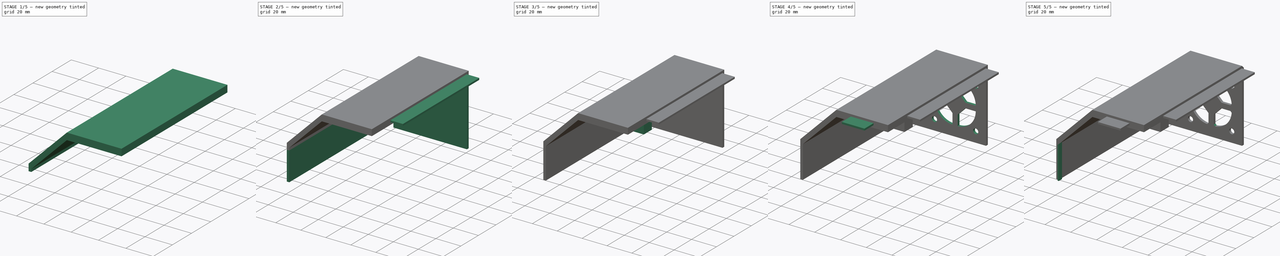
[diagram: build sequence overview — one tinted view per stage of 5, left to right]
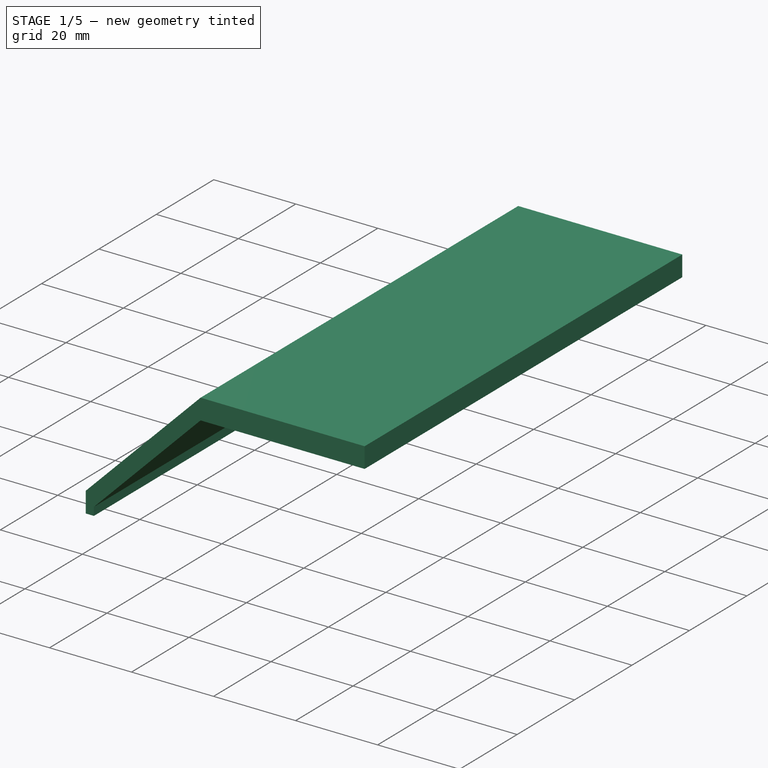
[diagram: stage 1 of 5 — iso view after this stage's code; geometry added in this stage tinted green]
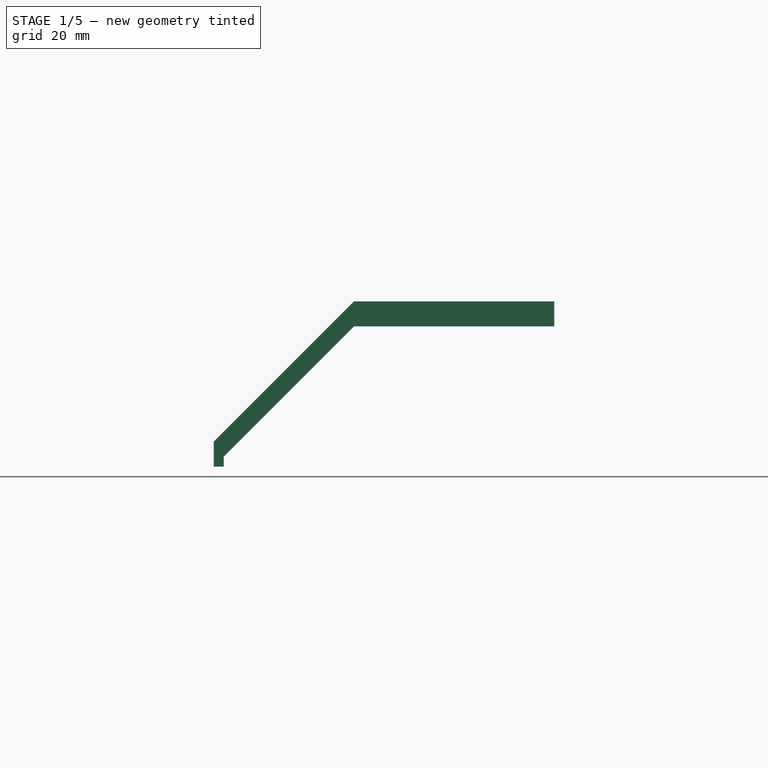
[diagram: stage 1 of 5 — front view after this stage's code; geometry added in this stage tinted green]
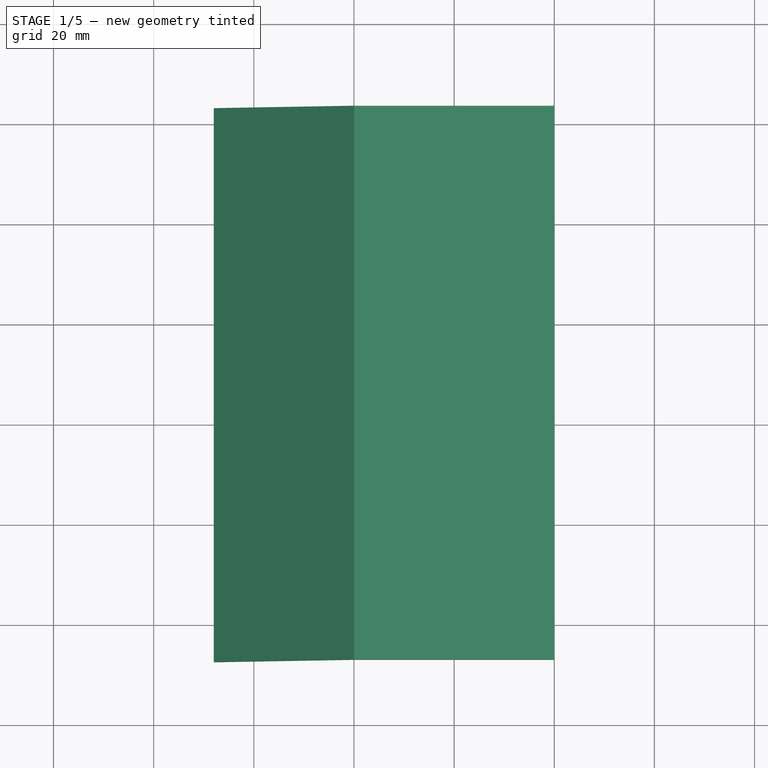
[diagram: stage 1 of 5 — top view after this stage's code; geometry added in this stage tinted green]
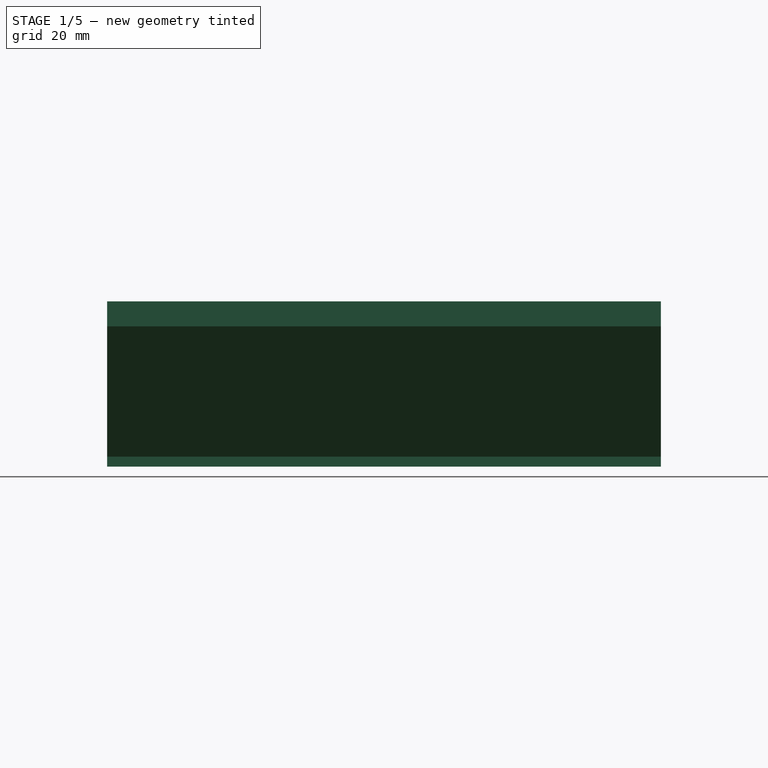
[diagram: stage 1 of 5 — right view after this stage's code; geometry added in this stage tinted green]
FCSTD DOCUMENT  (FreeCAD 2022.1112R26244 +5306 (Git))
Label: SecondPartProcessorTop
License: All rights reserved
LicenseURL: http://en.wikipedia.org/wiki/All_rights_reserved
objects: Sketcher::SketchObject×14, PartDesign::Pad×12, PartDesign::Chamfer×4, PartDesign::Pocket×3, PartDesign::CoordinateSystem×1, PartDesign::Body×1, App::Part×1
note: 87 computed .brp shape members not serialized (recipe doc carries the construction recipe); baked Part::Feature solids carry a one-line shape summary decoded from their .brp

FEATURE [PartDesign::CoordinateSystem] LCS_0
  AttacherType = Attacher::AttachEngine3D
  AttachmentSupport = -> [X_Axis001]
  MapMode = 2
  Support = -> [X_Axis001]
  TreeRank = 0
FEATURE [Sketcher::SketchObject] Sketch_1
  ArcFitTolerance = 0
  ExternalBSplineMaxDegree = 0
  ExternalBSplineTolerance = 0
  FullyConstrained = true
  InternalTolerance = 1e-06
  MakeInternals = false
  TreeRank = 0
  sketch-geometry (4):
    g0: LineSegment StartX=0 StartY=0 StartZ=0 EndX=-40 EndY=0 EndZ=0
    g1: LineSegment StartX=-40 StartY=0 StartZ=0 EndX=-40 EndY=93 EndZ=0
    g2: LineSegment StartX=-40 StartY=93 StartZ=0 EndX=0 EndY=93 EndZ=0
    g3: LineSegment StartX=0 StartY=93 StartZ=0 EndX=0 EndY=0 EndZ=0
  constraints (11):
    c: Coincident(g0,g1)
    c: Coincident(g1,g2)
    c: Coincident(g2,g3)
    c: Coincident(g3,g0)
    c: Horizontal(g0)
    c: Horizontal(g2)
    c: Vertical(g1)
    c: Vertical(g3)
    c: Coincident(g0,g-1)
    c: DistanceY(g3,g3) = 93
    c: DistanceX(g2,g2) = 40
FEATURE [PartDesign::Pad] Pad  label="MainSupport"
  AddSubType = 0
  AutoTaperInnerAngle = false
  CheckUpToFaceLimits = true
  ClaimChildren = false
  Direction = (0,0,1)
  Fit = 0
  FitJoin = 0
  InnerFit = 0
  InnerFitJoin = 0
  Length = 5
  Length2 = 100
  NewSolid = false
  Profile = -> Sketch_1
  Suppress = false
  TaperInnerAngle = 0
  TaperInnerAngleRev = 0
  TreeRank = 0
  Type = 0
  _ProfileBasedVersion = 0
FEATURE [Sketcher::SketchObject] Sketch
  ArcFitTolerance = 0
  AttachmentSupport = -> [XY_Plane001]
  ExternalBSplineMaxDegree = 0
  ExternalBSplineTolerance = 0
  ExternalGeometry = -> [Pad]
  FullyConstrained = true
  InternalTolerance = 1e-06
  MakeInternals = false
  MapMode = 5
  Support = -> [XY_Plane001]
  TreeRank = 1
  sketch-geometry (4):
    g0: LineSegment StartX=0 StartY=0 StartZ=0 EndX=-40 EndY=0 EndZ=0
    g1: LineSegment StartX=-40 StartY=0 StartZ=0 EndX=-40 EndY=-7.4 EndZ=0
    g2: LineSegment StartX=0 StartY=-7.4 StartZ=0 EndX=0 EndY=0 EndZ=0
    g3: LineSegment StartX=-40 StartY=-7.4 StartZ=0 EndX=0 EndY=-7.4 EndZ=0
  constraints (11):
    c: Coincident(g2,g0)
    c: Vertical(g1)
    c: Vertical(g2)
    c: Coincident(g0,g-1)
    c: DistanceY(g2,g2) = 7.4
    c: Horizontal(g0)
    c: Coincident(g1,g0)
    c: Coincident(g3,g1)
    c: Horizontal(g3)
    c: DistanceX(g0,g0) = 40
    c: Coincident(g3,g2)
FEATURE [PartDesign::Pad] Pad011  label="ExtraSideSize"
  AddSubType = 0
  AlongSketchNormal = false
  AutoTaperInnerAngle = false
  BaseFeature = -> Pad
  CheckUpToFaceLimits = true
  ClaimChildren = false
  Direction = (0,1,0)
  Fit = 0
  FitJoin = 0
  InnerFit = 0
  InnerFitJoin = 0
  Length = 10.2
  Length2 = 100
  Linearize = true
  NewSolid = false
  Profile = -> Pad [Face3]
  Suppress = false
  TaperInnerAngle = 0
  TaperInnerAngleRev = 0
  TreeRank = 27
  Type = 0
  _ProfileBasedVersion = 1
FEATURE [PartDesign::Pad] Pad001  label="ExtraPeripheralsSize"
  AddSubType = 0
  AlongSketchNormal = false
  AutoTaperInnerAngle = false
  BaseFeature = -> Pad011
  CheckUpToFaceLimits = true
  ClaimChildren = false
  Direction = (0,0,1)
  Fit = 0
  FitJoin = 0
  InnerFit = 0
  InnerFitJoin = 0
  Length = 5
  Length2 = 100
  Linearize = true
  NewSolid = false
  Profile = -> Sketch
  Suppress = false
  TaperInnerAngle = 0
  TaperInnerAngleRev = 0
  TreeRank = 2
  Type = 0
  _ProfileBasedVersion = 1
FEATURE [Sketcher::SketchObject] Sketch001
  ArcFitTolerance = 0
  AttachmentSupport = -> [Pad001]
  ExternalBSplineMaxDegree = 0
  ExternalBSplineTolerance = 0
  ExternalGeometry = -> [Pad001]
  FullyConstrained = true
  InternalTolerance = 1e-06
  MakeInternals = false
  MapMode = 5
  Placement = pos=(0,-7.4,0) rot=(1,0,0;1.5708rad)
  Support = -> [Pad001]
  TreeRank = 3
  sketch-geometry (7):
    g0: LineSegment StartX=-40 StartY=5 StartZ=0 EndX=-68 EndY=-23 EndZ=0
    g1: LineSegment StartX=-68 StartY=-23 StartZ=0 EndX=-68 EndY=-28 EndZ=0
    g2: LineSegment StartX=-40 StartY=5 StartZ=0 EndX=-40 EndY=0 EndZ=0
    g3: LineSegment StartX=-68 StartY=-28 StartZ=0 EndX=-66 EndY=-28 EndZ=0
    g4: LineSegment StartX=-66 StartY=-28 StartZ=0 EndX=-66 EndY=-26 EndZ=0
    g5: LineSegment StartX=-40 StartY=0 StartZ=0 EndX=-66 EndY=-26 EndZ=0
    g6: LineSegment [constr] StartX=-66 StartY=-26 StartZ=0 EndX=-68 EndY=-28 EndZ=0
  constraints (19):
    c: Coincident(g0,g-3)
    c: Coincident(g5,g-3)
    c: Coincident(g1,g0)
    c: Vertical(g1)
    c: DistanceX(g0,g0) = 28
    c: Angle(g0,g-3) = 0.785398
    c: Coincident(g2,g0)
    c: Coincident(g2,g5)
    c: Equal(g2,g1)
    c: DistanceY(g1,g5) = 28
    c: Horizontal(g3)
    c: Coincident(g4,g3)
    c: Vertical(g4)
    c: Coincident(g5,g4)
    c: Coincident(g3,g1)
    c: Coincident(g6,g4)
    c: Coincident(g6,g1)
    c: Parallel(g6,g5)
    c: DistanceX(g3,g3) = 2
FEATURE [PartDesign::Pad] Pad002  label="Slope"
  AddSubType = 0
  AlongSketchNormal = false
  AutoTaperInnerAngle = false
  BaseFeature = -> Pad001
  CheckUpToFaceLimits = true
  ClaimChildren = false
  Direction = (0,-1,2e-16)
  Fit = 0
  FitJoin = 0
  InnerFit = 0
  InnerFitJoin = 0
  Length = 10
  Length2 = 100
  Linearize = true
  NewSolid = false
  Profile = -> Sketch001
  Reversed = true
  Suppress = false
  TaperInnerAngle = 0
  TaperInnerAngleRev = 0
  TreeRank = 4
  Type = 3
  UpToFace = -> Pad001 [Face8]
  _ProfileBasedVersion = 1
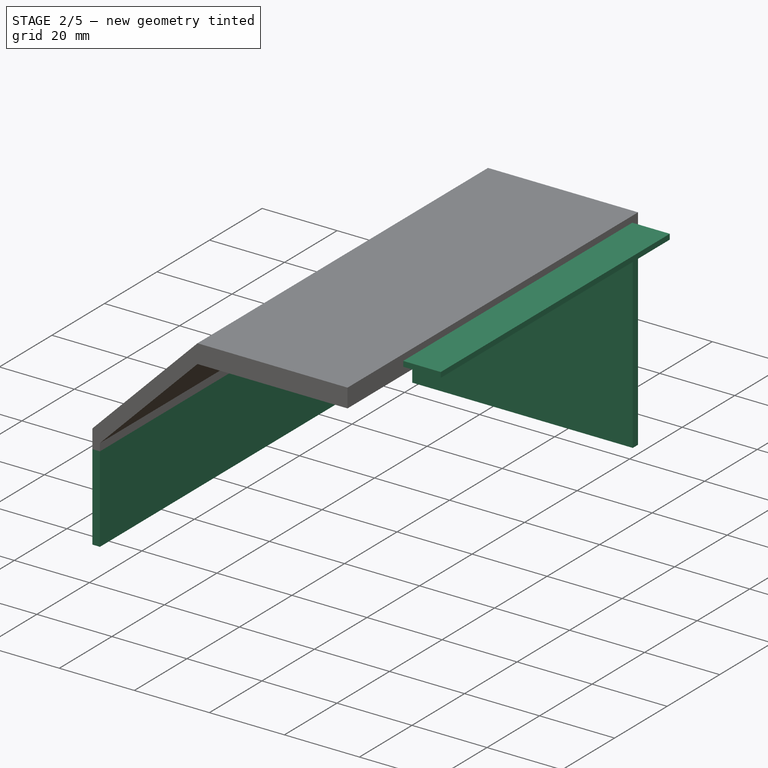
[diagram: stage 2 of 5 — iso view after this stage's code; geometry added in this stage tinted green]
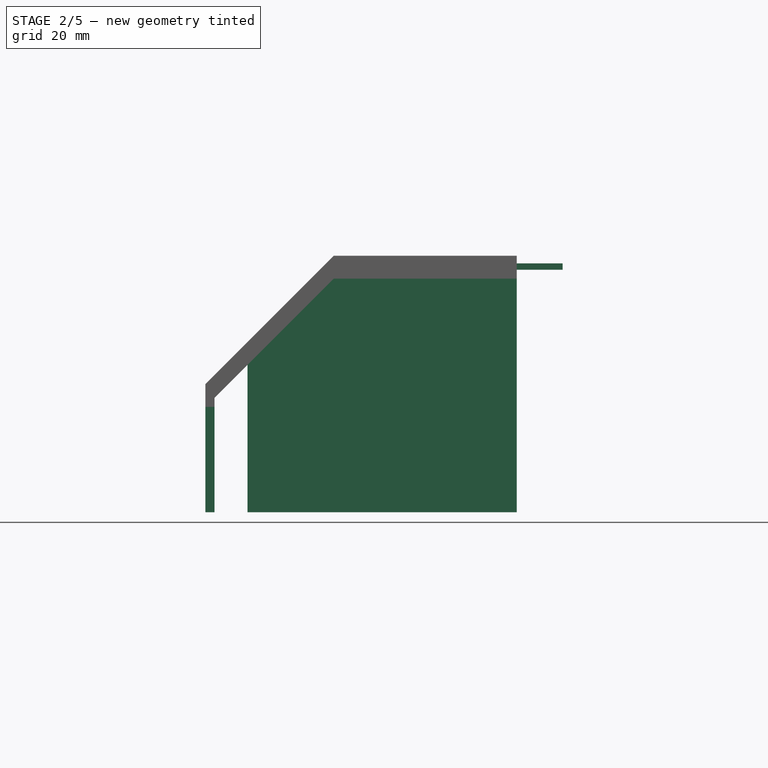
[diagram: stage 2 of 5 — front view after this stage's code; geometry added in this stage tinted green]
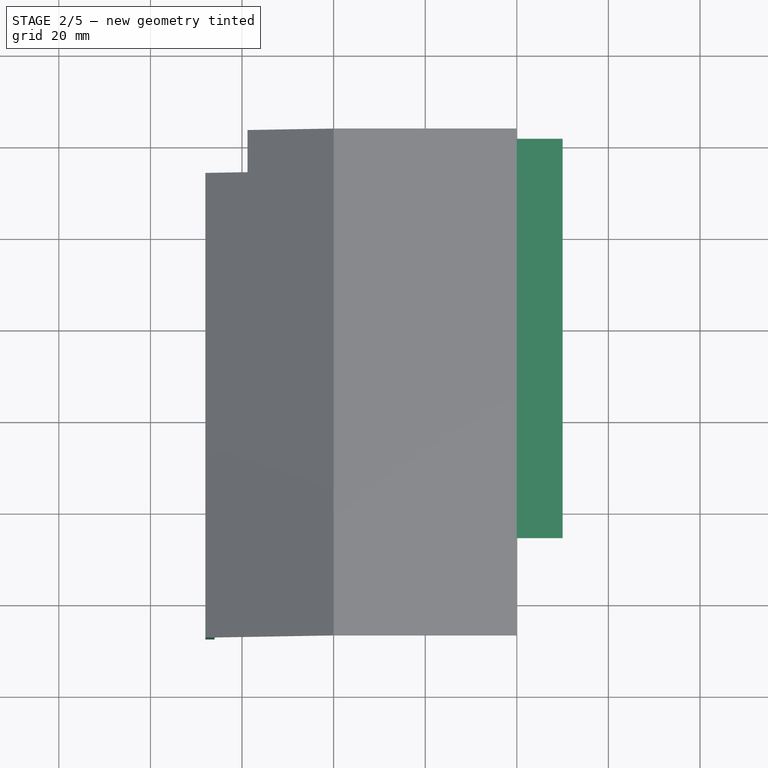
[diagram: stage 2 of 5 — top view after this stage's code; geometry added in this stage tinted green]
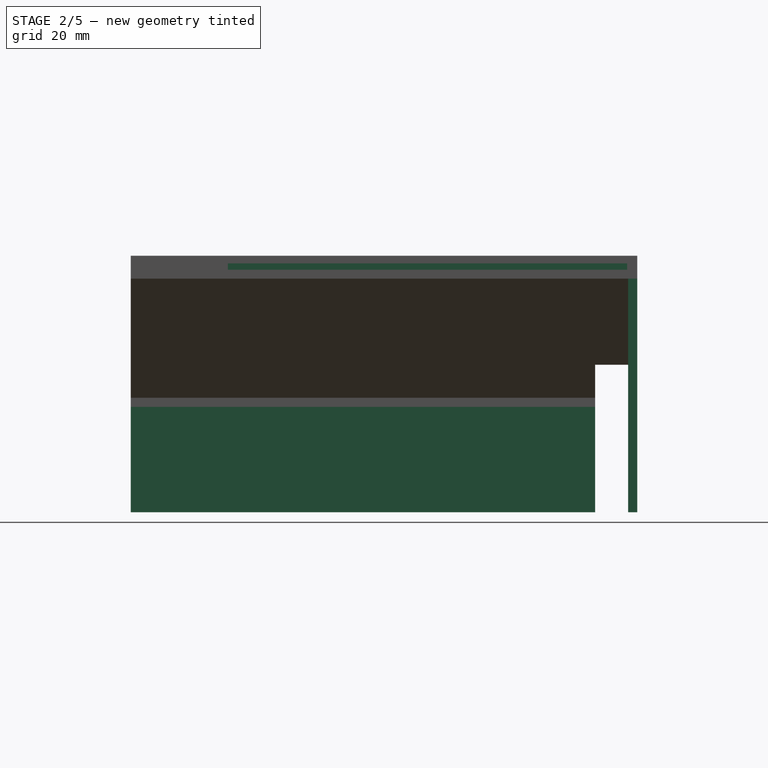
[diagram: stage 2 of 5 — right view after this stage's code; geometry added in this stage tinted green]
FEATURE [Sketcher::SketchObject] Sketch005
  ArcFitTolerance = 0
  AttachmentSupport = -> [Pad002]
  ExternalBSplineMaxDegree = 0
  ExternalBSplineTolerance = 0
  ExternalGeometry = -> [Pad002]
  FullyConstrained = true
  InternalTolerance = 1e-06
  MakeInternals = false
  MapMode = 5
  Placement = pos=(0,0,5) rot=(0,0,1;0rad)
  Support = -> [Pad002]
  TreeRank = 11
  sketch-geometry (4):
    g0: LineSegment StartX=-68 StartY=103.2 StartZ=0 EndX=-58.8 EndY=103.2 EndZ=0
    g1: LineSegment StartX=-58.8 StartY=103.2 StartZ=0 EndX=-58.8 EndY=94 EndZ=0
    g2: LineSegment StartX=-58.8 StartY=94 StartZ=0 EndX=-68 EndY=94 EndZ=0
    g3: LineSegment StartX=-68 StartY=94 StartZ=0 EndX=-68 EndY=103.2 EndZ=0
  constraints (11):
    c: Coincident(g0,g1)
    c: Coincident(g1,g2)
    c: Coincident(g2,g3)
    c: Coincident(g3,g0)
    c: Horizontal(g0)
    c: Horizontal(g2)
    c: Vertical(g1)
    c: Vertical(g3)
    c: Coincident(g0,g-3)
    c: Equal(g1,g2)
    c: DistanceY(g1,g1) = 9.2
FEATURE [PartDesign::Pocket] Pocket  label="ColumnPartHole"
  AddSubType = 1
  AutoTaperInnerAngle = false
  BaseFeature = -> Pad002
  CheckUpToFaceLimits = true
  ClaimChildren = false
  Fit = 0
  FitJoin = 0
  InnerFit = 0
  InnerFitJoin = 0
  Length = 5
  Length2 = 100
  Linearize = true
  NewSolid = false
  Profile = -> Sketch005
  Suppress = false
  TaperInnerAngle = 0
  TaperInnerAngleRev = 0
  TreeRank = 12
  Type = 1
  _ProfileBasedVersion = 1
  _Version = 1
FEATURE [Sketcher::SketchObject] Sketch006
  ArcFitTolerance = 0
  ExternalBSplineMaxDegree = 0
  ExternalBSplineTolerance = 0
  ExternalGeometry = -> [Pocket]
  FullyConstrained = true
  InternalTolerance = 1e-06
  MakeInternals = false
  MapMode = 5
  Placement = pos=(0,-6.2e-15,-28) rot=(1,0,0;3.14159rad)
  TreeRank = 13
  sketch-geometry (4):
    g0: LineSegment StartX=-68 StartY=-94 StartZ=0 EndX=-66 EndY=-94 EndZ=0
    g1: LineSegment StartX=-66 StartY=-94 StartZ=0 EndX=-66 EndY=7.4 EndZ=0
    g2: LineSegment StartX=-66 StartY=7.4 StartZ=0 EndX=-68 EndY=7.4 EndZ=0
    g3: LineSegment StartX=-68 StartY=7.4 StartZ=0 EndX=-68 EndY=-94 EndZ=0
  constraints (10):
    c: Coincident(g0,g1)
    c: Coincident(g1,g2)
    c: Coincident(g2,g3)
    c: Coincident(g3,g0)
    c: Horizontal(g0)
    c: Horizontal(g2)
    c: Vertical(g1)
    c: Vertical(g3)
    c: Coincident(g0,g-4)
    c: Coincident(g1,g-3)
FEATURE [PartDesign::Pad] Pad006  label="SlopeSidePanel"
  AddSubType = 0
  AlongSketchNormal = false
  AutoTaperInnerAngle = false
  BaseFeature = -> Pocket
  CheckUpToFaceLimits = true
  ClaimChildren = false
  Direction = (0,-2e-16,-1)
  Fit = 0
  FitJoin = 0
  InnerFit = 0
  InnerFitJoin = 0
  Length = 23
  Length2 = 100
  Linearize = true
  NewSolid = false
  Profile = -> Sketch006
  Suppress = false
  TaperInnerAngle = 0
  TaperInnerAngleRev = 0
  TreeRank = 14
  Type = 0
  _ProfileBasedVersion = 1
FEATURE [Sketcher::SketchObject] Sketch011
  ArcFitTolerance = 0
  ExternalBSplineMaxDegree = 0
  ExternalBSplineTolerance = 0
  ExternalGeometry = -> [Pad006]
  FullyConstrained = true
  InternalTolerance = 1e-06
  MakeInternals = false
  MapMode = 5
  Placement = pos=(0,0,0) rot=(0.57735,0.57735,0.57735;2.0944rad)
  TreeRank = 23
  sketch-geometry (4):
    g0: LineSegment StartX=13.8 StartY=3.34 StartZ=0 EndX=101 EndY=3.34 EndZ=0
    g1: LineSegment StartX=101 StartY=3.34 StartZ=0 EndX=101 EndY=1.94 EndZ=0
    g2: LineSegment StartX=101 StartY=1.94 StartZ=0 EndX=13.8 EndY=1.94 EndZ=0
    g3: LineSegment StartX=13.8 StartY=1.94 StartZ=0 EndX=13.8 EndY=3.34 EndZ=0
  constraints (12):
    c: Coincident(g0,g1)
    c: Coincident(g1,g2)
    c: Coincident(g2,g3)
    c: Coincident(g3,g0)
    c: Horizontal(g0)
    c: Horizontal(g2)
    c: Vertical(g1)
    c: Vertical(g3)
    c: DistanceY(g-3,g2) = 1.94
    c: DistanceX(g-3,g0) = 21.2
    c: DistanceY(g3,g3) = 1.4
    c: DistanceX(g0,g-4) = 2.2
FEATURE [PartDesign::Pad] Pad010  label="Puzzle1"
  AddSubType = 0
  AlongSketchNormal = false
  AutoTaperInnerAngle = false
  BaseFeature = -> Pad006
  CheckUpToFaceLimits = true
  ClaimChildren = false
  Direction = (1,0,0)
  Fit = 0
  FitJoin = 0
  InnerFit = 0
  InnerFitJoin = 0
  Length = 10
  Length2 = 100
  Linearize = true
  NewSolid = false
  Profile = -> Sketch011
  Suppress = false
  TaperInnerAngle = 0
  TaperInnerAngleRev = 0
  TreeRank = 24
  Type = 0
  _ProfileBasedVersion = 1
FEATURE [Sketcher::SketchObject] Sketch013
  ArcFitTolerance = 0
  AttachmentSupport = -> [Pad006]
  ExternalBSplineMaxDegree = 0
  ExternalBSplineTolerance = 0
  ExternalGeometry = -> [Pad006]
  FullyConstrained = true
  InternalTolerance = 1e-06
  MakeInternals = false
  MapMode = 5
  Placement = pos=(0,103.2,0) rot=(0,0.707107,0.707107;3.14159rad)
  Support = -> [Pad006]
  TreeRank = 28
  sketch-geometry (6):
    g0: LineSegment StartX=0 StartY=0 StartZ=0 EndX=40 EndY=0 EndZ=0
    g1: LineSegment StartX=40 StartY=0 StartZ=0 EndX=58.8 EndY=-18.8 EndZ=0
    g2: LineSegment StartX=58.8 StartY=-51 StartZ=0 EndX=0 EndY=-51 EndZ=0
    g3: LineSegment StartX=0 StartY=-51 StartZ=0 EndX=0 EndY=0 EndZ=0
    g4: LineSegment StartX=58.8 StartY=-18.8 StartZ=0 EndX=58.8 EndY=-51 EndZ=0
    g5: LineSegment [constr] StartX=66 StartY=-51 StartZ=0 EndX=58.8 EndY=-51 EndZ=0
  constraints (14):
    c: Coincident(g0,g-1)
    c: Coincident(g0,g-3)
    c: Coincident(g1,g0)
    c: Horizontal(g2)
    c: Coincident(g3,g2)
    c: Coincident(g3,g0)
    c: Vertical(g3)
    c: Coincident(g1,g-5)
    c: Coincident(g4,g1)
    c: Coincident(g4,g2)
    c: Vertical(g4)
    c: Coincident(g5,g-4)
    c: Coincident(g5,g2)
    c: Horizontal(g5)
FEATURE [PartDesign::Pad] Pad012  label="endPanel"
  AddSubType = 0
  AlongSketchNormal = false
  AutoTaperInnerAngle = false
  BaseFeature = -> Pad010
  CheckUpToFaceLimits = true
  ClaimChildren = false
  Direction = (0,1,-2e-16)
  Fit = 0
  FitJoin = 0
  InnerFit = 0
  InnerFitJoin = 0
  Length = 2
  Length2 = 100
  Linearize = true
  NewSolid = false
  Profile = -> Sketch013
  Reversed = true
  Suppress = false
  TaperInnerAngle = 0
  TaperInnerAngleRev = 0
  TreeRank = 29
  Type = 0
  _ProfileBasedVersion = 1
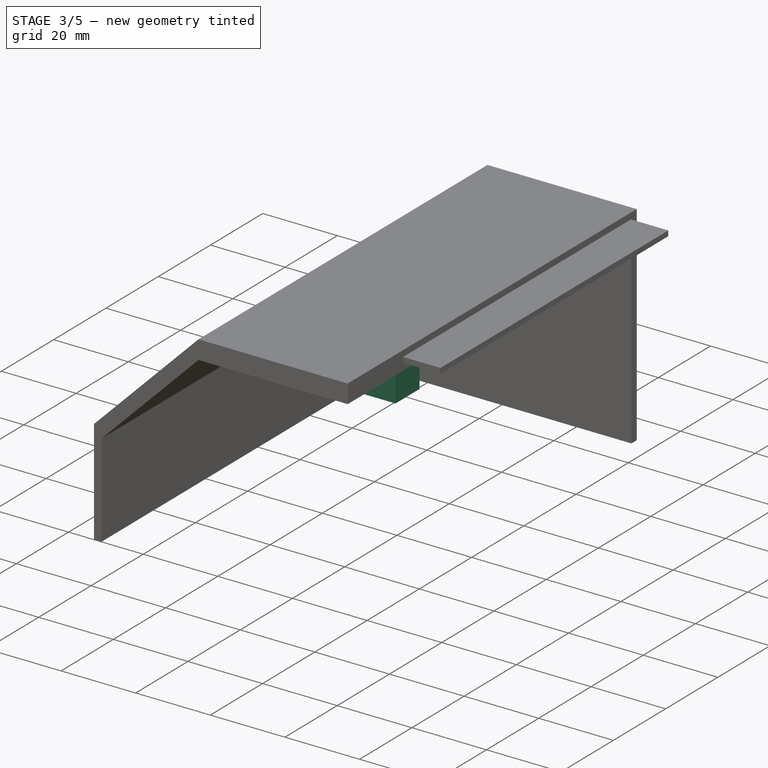
[diagram: stage 3 of 5 — iso view after this stage's code; geometry added in this stage tinted green]
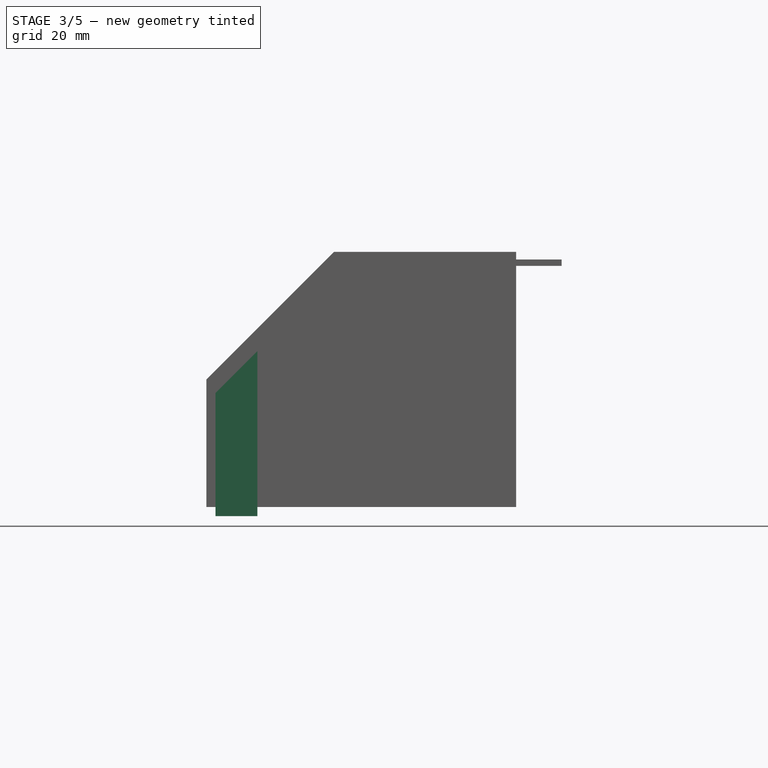
[diagram: stage 3 of 5 — front view after this stage's code; geometry added in this stage tinted green]
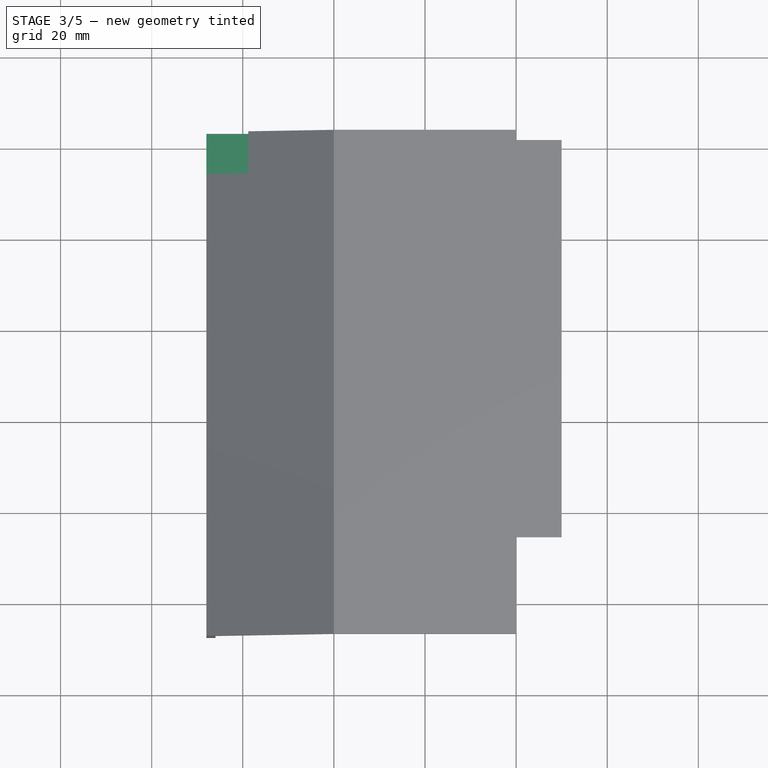
[diagram: stage 3 of 5 — top view after this stage's code; geometry added in this stage tinted green]
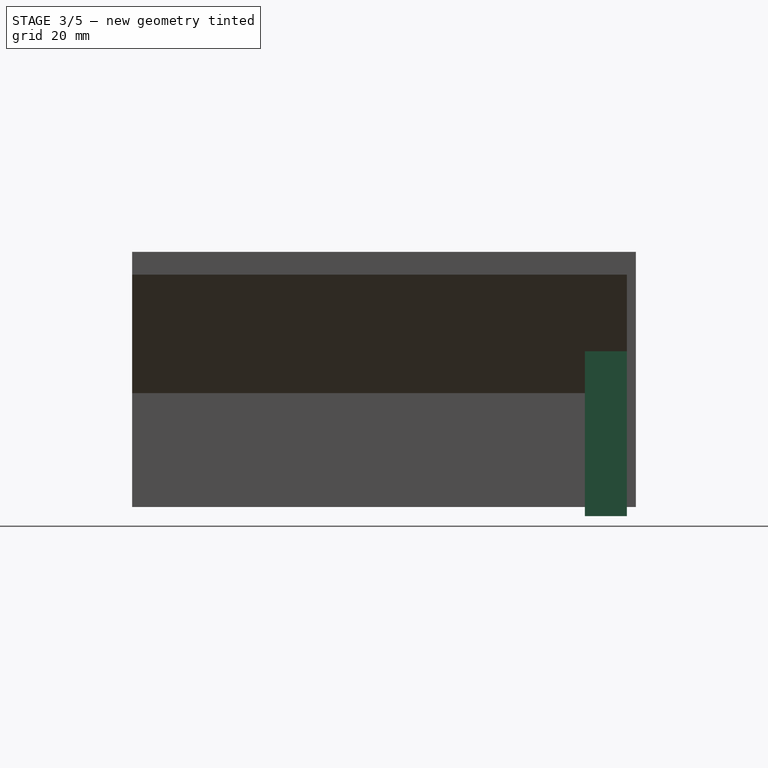
[diagram: stage 3 of 5 — right view after this stage's code; geometry added in this stage tinted green]
FEATURE [Sketcher::SketchObject] Sketch014
  ArcFitTolerance = 0
  AttachmentSupport = -> [Pad012]
  ExternalBSplineMaxDegree = 0
  ExternalBSplineTolerance = 0
  ExternalGeometry = -> [Pad012]
  FullyConstrained = true
  InternalTolerance = 1e-06
  MakeInternals = false
  MapMode = 5
  Placement = pos=(3e-15,101.2,-2.93e-14) rot=(1,0,0;1.5708rad)
  Support = -> [Pad012]
  TreeRank = 30
  sketch-geometry (7):
    g0: LineSegment StartX=-58.8 StartY=-51 StartZ=0 EndX=-58.8 EndY=-18.8 EndZ=0
    g1: LineSegment StartX=-58.8 StartY=-18.8 StartZ=0 EndX=-56.8 EndY=-16.8 EndZ=0
    g2: LineSegment StartX=-56.8 StartY=-16.8 StartZ=0 EndX=-56.8 EndY=-51 EndZ=0
    g3: LineSegment [constr] StartX=-56.8 StartY=-51 StartZ=0 EndX=-58.8 EndY=-51 EndZ=0
    g4: LineSegment StartX=-58.8 StartY=-51 StartZ=0 EndX=-58.8 EndY=-53 EndZ=0
    g5: LineSegment StartX=-58.8 StartY=-53 StartZ=0 EndX=-56.8 EndY=-53 EndZ=0
    g6: LineSegment StartX=-56.8 StartY=-53 StartZ=0 EndX=-56.8 EndY=-51 EndZ=0
  constraints (18):
    c: Coincident(g0,g-3)
    c: Coincident(g0,g-3)
    c: Coincident(g1,g0)
    c: PointOnObject(g1,g-4)
    c: Coincident(g2,g1)
    c: Vertical(g2)
    c: Coincident(g3,g2)
    c: Coincident(g3,g0)
    c: Horizontal(g3)
    c: DistanceX(g3,g3) = 2
    c: Coincident(g4,g0)
    c: Vertical(g4)
    c: Coincident(g5,g4)
    c: Horizontal(g5)
    c: Coincident(g6,g5)
    c: Coincident(g6,g2)
    c: Vertical(g6)
    c: DistanceY(g6,g6) = 2
FEATURE [PartDesign::Pad] Pad013  label="ColumnPanel1"
  AddSubType = 0
  AlongSketchNormal = false
  AutoTaperInnerAngle = false
  BaseFeature = -> Pad012
  CheckUpToFaceLimits = true
  ClaimChildren = false
  Direction = (0,-1,2e-16)
  Fit = 0
  FitJoin = 0
  InnerFit = 0
  InnerFitJoin = 0
  Length = 7.2
  Length2 = 100
  Linearize = true
  NewSolid = false
  Profile = -> Sketch014
  Suppress = false
  TaperInnerAngle = 0
  TaperInnerAngleRev = 0
  TreeRank = 31
  Type = 0
  _ProfileBasedVersion = 1
FEATURE [Sketcher::SketchObject] Sketch015
  ArcFitTolerance = 0
  AttachmentSupport = -> [Pad013]
  ExternalBSplineMaxDegree = 0
  ExternalBSplineTolerance = 0
  ExternalGeometry = -> [Pad013]
  FullyConstrained = true
  InternalTolerance = 1e-06
  MakeInternals = false
  MapMode = 5
  Placement = pos=(1.88e-14,94,-3.95e-14) rot=(1,0,0;1.5708rad)
  Support = -> [Pad013]
  TreeRank = 32
  sketch-geometry (4):
    g0: LineSegment StartX=-56.8 StartY=-53 StartZ=0 EndX=-66 EndY=-53 EndZ=0
    g1: LineSegment StartX=-66 StartY=-53 StartZ=0 EndX=-66 EndY=-26 EndZ=0
    g2: LineSegment StartX=-56.8 StartY=-53 StartZ=0 EndX=-56.8 EndY=-16.8 EndZ=0
    g3: LineSegment StartX=-56.8 StartY=-16.8 StartZ=0 EndX=-66 EndY=-26 EndZ=0
  constraints (10):
    c: Horizontal(g0)
    c: Coincident(g1,g0)
    c: Coincident(g1,g-4)
    c: Vertical(g1)
    c: PointOnObject(g2,g-4)
    c: Vertical(g2)
    c: Coincident(g3,g2)
    c: Coincident(g3,g1)
    c: Coincident(g0,g-3)
    c: Coincident(g2,g0)
FEATURE [PartDesign::Pad] Pad014  label="ColumnPanel2"
  AddSubType = 0
  AlongSketchNormal = false
  AutoTaperInnerAngle = false
  BaseFeature = -> Pad013
  CheckUpToFaceLimits = true
  ClaimChildren = false
  Direction = (-2e-16,-1,4e-16)
  Fit = 0
  FitJoin = 0
  InnerFit = 0
  InnerFitJoin = 0
  Length = 2
  Length2 = 100
  Linearize = true
  NewSolid = false
  Profile = -> Sketch015
  Suppress = false
  TaperInnerAngle = 0
  TaperInnerAngleRev = 0
  TreeRank = 33
  Type = 0
  _ProfileBasedVersion = 1
FEATURE [Sketcher::SketchObject] Sketch016
  ArcFitTolerance = 0
  AttachmentSupport = -> [Pad014]
  ExternalBSplineMaxDegree = 0
  ExternalBSplineTolerance = 0
  ExternalGeometry = -> [Pad014]
  FullyConstrained = true
  InternalTolerance = 1e-06
  MakeInternals = false
  MapMode = 5
  Placement = pos=(-58.8,1.8e-15,0) rot=(-0.57735,0.57735,0.57735;4.18879rad)
  Support = -> [Pad014]
  TreeRank = 34
  sketch-geometry (4):
    g0: LineSegment StartX=-103.2 StartY=-51 StartZ=0 EndX=-94 EndY=-51 EndZ=0
    g1: LineSegment StartX=-94 StartY=-51 StartZ=0 EndX=-94 EndY=-46 EndZ=0
    g2: LineSegment StartX=-94 StartY=-46 StartZ=0 EndX=-103.2 EndY=-46 EndZ=0
    g3: LineSegment StartX=-103.2 StartY=-46 StartZ=0 EndX=-103.2 EndY=-51 EndZ=0
  constraints (11):
    c: Coincident(g0,g1)
    c: Coincident(g1,g2)
    c: Coincident(g2,g3)
    c: Coincident(g3,g0)
    c: Horizontal(g0)
    c: Horizontal(g2)
    c: Vertical(g1)
    c: Vertical(g3)
    c: Coincident(g0,g-3)
    c: PointOnObject(g1,g-4)
    c: DistanceY(g3,g3) = 5
FEATURE [PartDesign::Pad] Pad015  label="HoleSupport"
  AddSubType = 0
  AlongSketchNormal = false
  AutoTaperInnerAngle = false
  BaseFeature = -> Pad014
  CheckUpToFaceLimits = true
  ClaimChildren = false
  Direction = (-1,0,0)
  Fit = 0
  FitJoin = 0
  InnerFit = 0
  InnerFitJoin = 0
  Length = 10
  Length2 = 100
  Linearize = true
  NewSolid = false
  Profile = -> Sketch016
  Suppress = false
  TaperInnerAngle = 0
  TaperInnerAngleRev = 0
  TreeRank = 35
  Type = 3
  UpToFace = -> Pad014 [Face37]
  _ProfileBasedVersion = 1
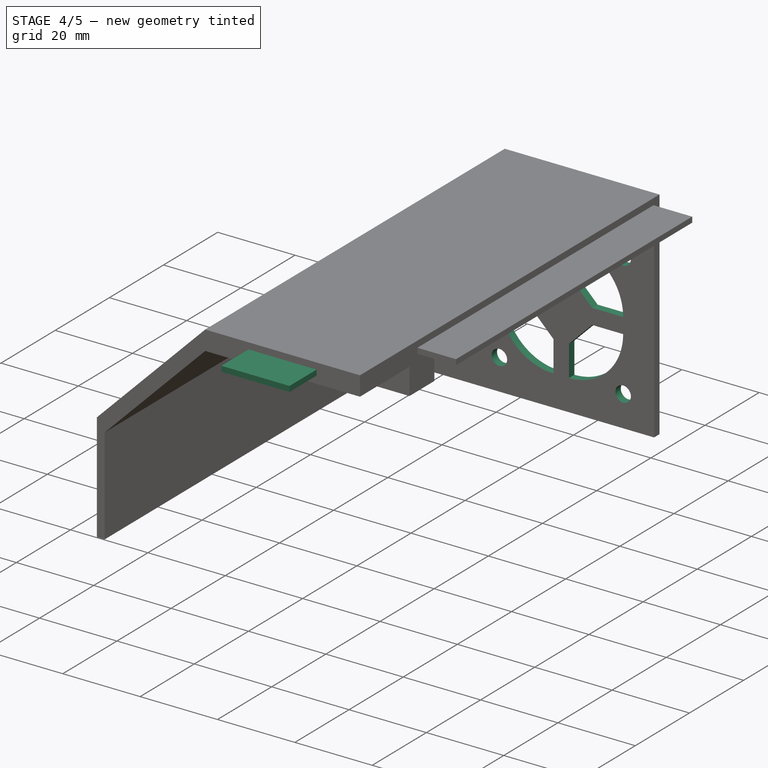
[diagram: stage 4 of 5 — iso view after this stage's code; geometry added in this stage tinted green]
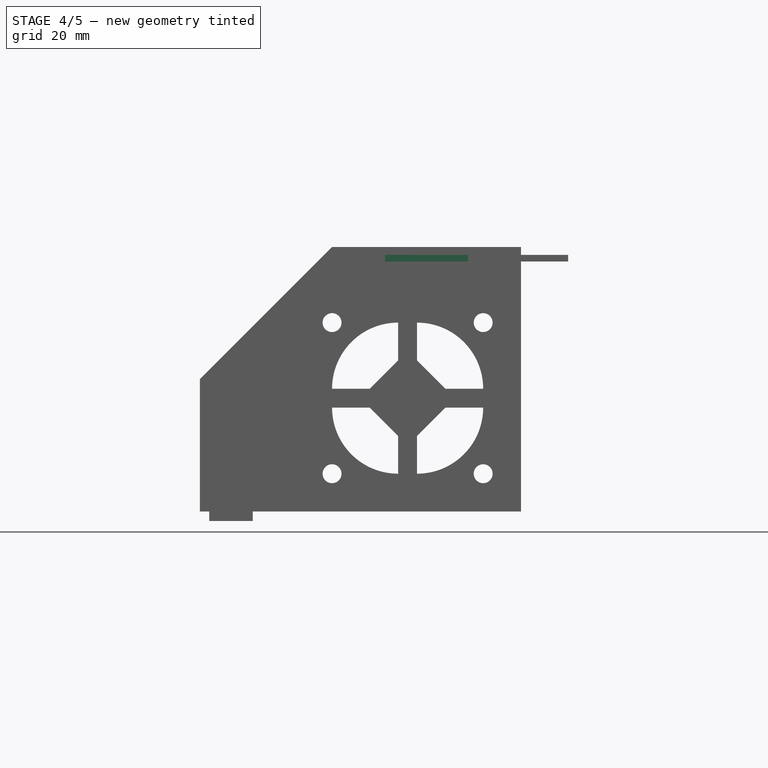
[diagram: stage 4 of 5 — front view after this stage's code; geometry added in this stage tinted green]
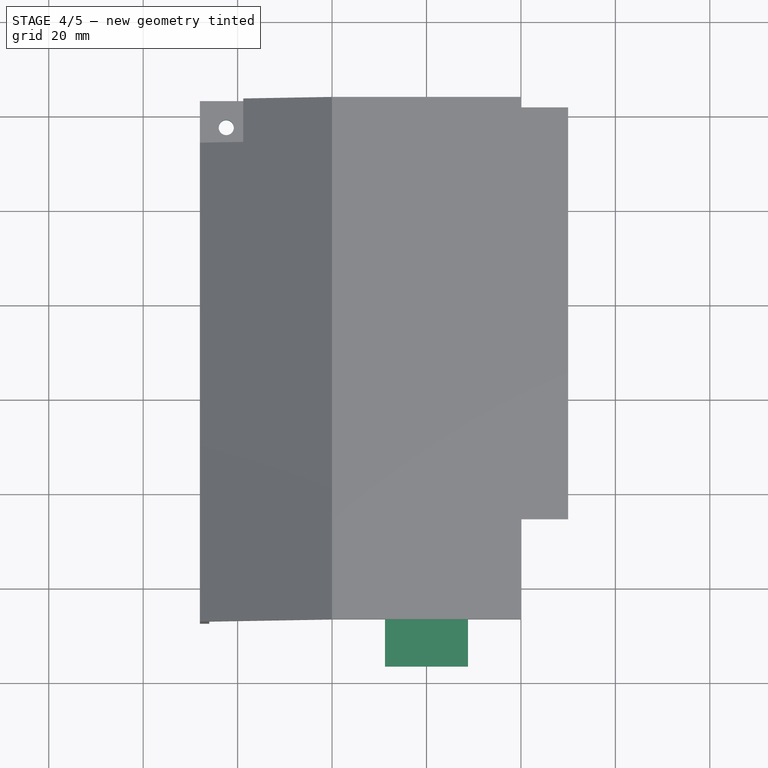
[diagram: stage 4 of 5 — top view after this stage's code; geometry added in this stage tinted green]
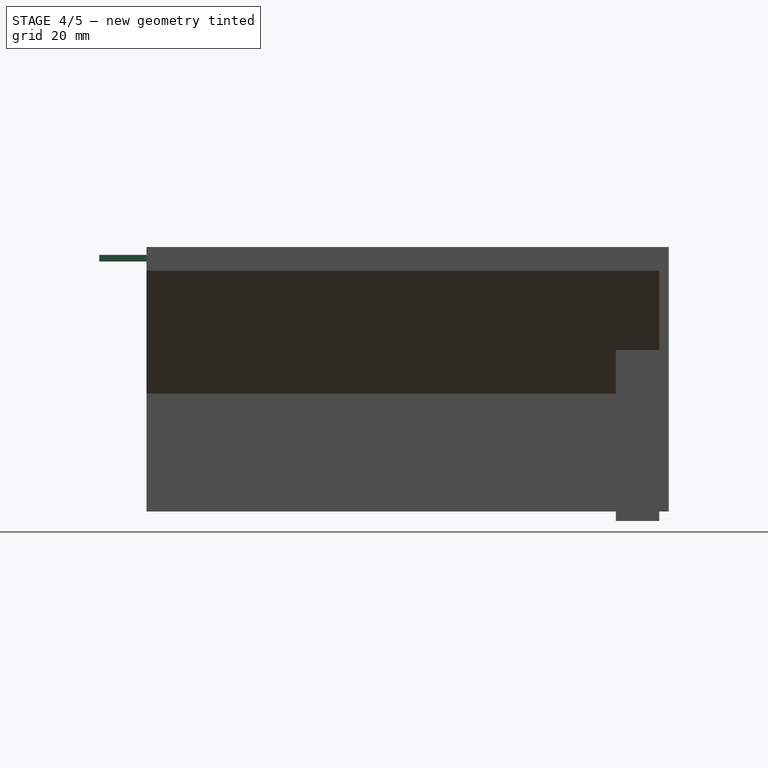
[diagram: stage 4 of 5 — right view after this stage's code; geometry added in this stage tinted green]
FEATURE [Sketcher::SketchObject] Sketch017
  ArcFitTolerance = 0
  AttachmentSupport = -> [Pad015]
  ExternalBSplineMaxDegree = 0
  ExternalBSplineTolerance = 0
  ExternalGeometry = -> [Pad015]
  FullyConstrained = true
  InternalTolerance = 1e-06
  MakeInternals = false
  MapMode = 5
  Placement = pos=(0,0,-46) rot=(0,0,1;0rad)
  Support = -> [Pad015]
  TreeRank = 36
  sketch-geometry (3):
    g0: LineSegment [constr] StartX=-62.4 StartY=94 StartZ=0 EndX=-62.4 EndY=97.6 EndZ=0
    g1: LineSegment [constr] StartX=-62.4 StartY=97.6 StartZ=0 EndX=-58.8 EndY=97.6 EndZ=0
    g2: Circle CenterX=-62.4 CenterY=97.6 CenterZ=0 NormalX=0 NormalY=0 NormalZ=1 AngleXU=0 Radius=1.6
  constraints (9):
    c: PointOnObject(g0,g-4)
    c: Vertical(g0)
    c: Coincident(g1,g0)
    c: PointOnObject(g1,g-3)
    c: Horizontal(g1)
    c: DistanceY(g-4,g1) = 3.6
    c: DistanceX(g0,g-4) = 3.6
    c: Coincident(g2,g0)
    c: Diameter(g2) = 3.2
FEATURE [PartDesign::Pocket] Pocket001  label="Hole"
  AddSubType = 1
  AutoTaperInnerAngle = false
  BaseFeature = -> Pad015
  CheckUpToFaceLimits = true
  ClaimChildren = false
  Fit = 0
  FitJoin = 0
  InnerFit = 0
  InnerFitJoin = 0
  Length = 5
  Length2 = 100
  Linearize = true
  NewSolid = false
  Profile = -> Sketch017
  Suppress = false
  TaperInnerAngle = 0
  TaperInnerAngleRev = 0
  TreeRank = 37
  Type = 0
  _ProfileBasedVersion = 1
  _Version = 1
FEATURE [Sketcher::SketchObject] Sketch018
  ArcFitTolerance = 0
  AttachmentSupport = -> [Pocket001]
  ExternalBSplineMaxDegree = 0
  ExternalBSplineTolerance = 0
  ExternalGeometry = -> [Pocket001]
  FullyConstrained = true
  InternalTolerance = 1e-06
  MakeInternals = false
  MapMode = 5
  Placement = pos=(0,-7.4,0) rot=(1,0,0;1.5708rad)
  Support = -> [Pocket001]
  TreeRank = 38
  sketch-geometry (4):
    g0: LineSegment StartX=-28.8 StartY=3.34 StartZ=0 EndX=-11.2 EndY=3.34 EndZ=0
    g1: LineSegment StartX=-11.2 StartY=3.34 StartZ=0 EndX=-11.2 EndY=1.94 EndZ=0
    g2: LineSegment StartX=-11.2 StartY=1.94 StartZ=0 EndX=-28.8 EndY=1.94 EndZ=0
    g3: LineSegment StartX=-28.8 StartY=1.94 StartZ=0 EndX=-28.8 EndY=3.34 EndZ=0
  constraints (12):
    c: Coincident(g0,g1)
    c: Coincident(g1,g2)
    c: Coincident(g2,g3)
    c: Coincident(g3,g0)
    c: Horizontal(g0)
    c: Horizontal(g2)
    c: Vertical(g1)
    c: Vertical(g3)
    c: DistanceX(g-3,g0) = 11.2
    c: DistanceX(g0,g-4) = 11.2
    c: DistanceY(g3,g3) = 1.4
    c: DistanceY(g-3,g2) = 1.94
FEATURE [PartDesign::Pad] Pad016  label="Puzzle002"
  AddSubType = 0
  AlongSketchNormal = false
  AutoTaperInnerAngle = false
  BaseFeature = -> Pocket001
  CheckUpToFaceLimits = true
  ClaimChildren = false
  Direction = (0,-1,2e-16)
  Fit = 0
  FitJoin = 0
  InnerFit = 0
  InnerFitJoin = 0
  Length = 10
  Length2 = 100
  Linearize = true
  NewSolid = false
  Profile = -> Sketch018
  Suppress = false
  TaperInnerAngle = 0
  TaperInnerAngleRev = 0
  TreeRank = 39
  Type = 0
  _ProfileBasedVersion = 1
FEATURE [Sketcher::SketchObject] Sketch019
  ArcFitTolerance = 0
  AttachmentSupport = -> [Pad016]
  ExternalBSplineMaxDegree = 0
  ExternalBSplineTolerance = 0
  ExternalGeometry = -> [Pad016]
  FullyConstrained = true
  InternalTolerance = 1e-06
  MakeInternals = false
  MapMode = 5
  Placement = pos=(3.1e-15,103.2,-2.99e-14) rot=(0,0.707107,0.707107;3.14159rad)
  Support = -> [Pad016]
  TreeRank = 40
  sketch-geometry (30):
    g0: LineSegment [constr] StartX=8 StartY=-11 StartZ=0 EndX=40 EndY=-11 EndZ=0
    g1: LineSegment [constr] StartX=40 StartY=-11 StartZ=0 EndX=40 EndY=-43 EndZ=0
    g2: LineSegment [constr] StartX=40 StartY=-43 StartZ=0 EndX=8 EndY=-43 EndZ=0
    g3: LineSegment [constr] StartX=8 StartY=-43 StartZ=0 EndX=8 EndY=-11 EndZ=0
    g4: Circle CenterX=8 CenterY=-11 CenterZ=0 NormalX=0 NormalY=0 NormalZ=1 AngleXU=0 Radius=2
    g5: LineSegment [constr] StartX=4 StartY=-7 StartZ=0 EndX=44 EndY=-7 EndZ=0
    g6: LineSegment [constr] StartX=44 StartY=-7 StartZ=0 EndX=44 EndY=-47 EndZ=0
    g7: LineSegment [constr] StartX=44 StartY=-47 StartZ=0 EndX=4 EndY=-47 EndZ=0
    g8: LineSegment [constr] StartX=4 StartY=-47 StartZ=0 EndX=4 EndY=-7 EndZ=0
    g9: LineSegment [constr] StartX=4 StartY=-7 StartZ=0 EndX=8 EndY=-11 EndZ=0
    g10: LineSegment [constr] StartX=40 StartY=-43 StartZ=0 EndX=44 EndY=-47 EndZ=0
    g11: LineSegment [constr] StartX=40 StartY=-11 StartZ=0 EndX=44 EndY=-7 EndZ=0
    g12: LineSegment [constr] StartX=8 StartY=-43 StartZ=0 EndX=4 EndY=-47 EndZ=0
    g13: GeomPoint X=24 Y=-27 Z=0
    g14: LineSegment StartX=8 StartY=-25 StartZ=0 EndX=22 EndY=-25 EndZ=0
    g15: LineSegment StartX=22 StartY=-25 StartZ=0 EndX=22 EndY=-11 EndZ=0
    g16: LineSegment [constr] StartX=8 StartY=-11 StartZ=0 EndX=24 EndY=-27 EndZ=0
    g17: ArcOfCircle CenterX=22 CenterY=-25 CenterZ=0 NormalX=0 NormalY=0 NormalZ=1 AngleXU=0 Radius=14 StartAngle=1.5708 EndAngle=3.14159
    g18: Circle CenterX=8 CenterY=-43 CenterZ=0 NormalX=0 NormalY=0 NormalZ=1 AngleXU=0 Radius=2
    g19: Circle CenterX=40 CenterY=-43 CenterZ=0 NormalX=0 NormalY=0 NormalZ=1 AngleXU=0 Radius=2
    g20: Circle CenterX=40 CenterY=-11 CenterZ=0 NormalX=0 NormalY=0 NormalZ=1 AngleXU=0 Radius=2
    g21: LineSegment StartX=26 StartY=-25 StartZ=0 EndX=26 EndY=-11 EndZ=0
    g22: LineSegment StartX=26 StartY=-25 StartZ=0 EndX=40 EndY=-25 EndZ=0
    g23: LineSegment StartX=22 StartY=-29 StartZ=0 EndX=8 EndY=-29 EndZ=0
    g24: LineSegment StartX=22 StartY=-29 StartZ=0 EndX=22 EndY=-43 EndZ=0
    g25: LineSegment StartX=26 StartY=-29 StartZ=0 EndX=40 EndY=-29 EndZ=0
    g26: LineSegment StartX=26 StartY=-29 StartZ=0 EndX=26 EndY=-43 EndZ=0
    g27: ArcOfCircle CenterX=22 CenterY=-29 CenterZ=0 NormalX=0 NormalY=0 NormalZ=1 AngleXU=0 Radius=14 StartAngle=3.14159 EndAngle=4.71239
    g28: ArcOfCircle CenterX=26 CenterY=-29 CenterZ=0 NormalX=0 NormalY=0 NormalZ=1 AngleXU=0 Radius=14 StartAngle=4.71239 EndAngle=6.28319
    g29: ArcOfCircle CenterX=26 CenterY=-25 CenterZ=0 NormalX=0 NormalY=0 NormalZ=1 AngleXU=0 Radius=14 StartAngle=0 EndAngle=1.5708
  constraints (79):
    c: Coincident(g0,g1)
    c: Coincident(g1,g2)
    c: Coincident(g2,g3)
    c: Coincident(g3,g0)
    c: Horizontal(g0)
    c: Horizontal(g2)
    c: Vertical(g1)
    c: Vertical(g3)
    c: Equal(g0,g1)
    c: DistanceY(g1,g1) = 32
    c: Coincident(g4,g0)
    c: Diameter(g4) = 4
    c: Coincident(g5,g6)
    c: Coincident(g6,g7)
    c: Coincident(g7,g8)
    c: Coincident(g8,g5)
    c: Horizontal(g5)
    c: Horizontal(g7)
    c: Vertical(g6)
    c: Vertical(g8)
    c: Coincident(g9,g5)
    c: Coincident(g9,g4)
    c: Coincident(g10,g6)
    c: Equal(g10,g9)
    c: Coincident(g11,g5)
    c: Coincident(g12,g7)
    c: Equal(g12,g11)
    c: DistanceX(g5,g5) = 40
    c: DistanceY(g6,g6) = 40
    c: DistanceY(g5,g-3) = 7
    c: DistanceX(g-3,g5) = 4
    c: Horizontal(g14)
    c: Coincident(g15,g14)
    c: Vertical(g15)
    c: Coincident(g16,g4)
    c: Coincident(g16,g13)
    c: PointOnObject(g14,g16)
    c: Coincident(g17,g14)
    c: Coincident(g17,g14)
    c: Coincident(g17,g15)
    c: PointOnObject(g15,g0)
    c: DistanceX(g14,g13) = 2
    c: Coincident(g1,g10)
    c: Coincident(g11,g0)
    c: Coincident(g12,g2)
    c: Symmetric(g4,g1,g13)
    c: Coincident(g18,g2)
    c: Coincident(g19,g1)
    c: Coincident(g20,g0)
    c: PointOnObject(g21,g0)
    c: Vertical(g21)
    c: Coincident(g22,g21)
    c: Horizontal(g22)
    c: Horizontal(g23)
    c: Coincident(g24,g23)
    c: PointOnObject(g24,g2)
    c: Vertical(g24)
    c: Horizontal(g25)
    c: Coincident(g26,g25)
    c: PointOnObject(g26,g2)
    c: Vertical(g26)
    c: Coincident(g27,g23)
    c: Coincident(g27,g24)
    c: Coincident(g27,g23)
    c: Coincident(g28,g25)
    c: Coincident(g28,g26)
    c: Coincident(g28,g25)
    c: Coincident(g29,g21)
    c: Coincident(g29,g21)
    c: Coincident(g29,g22)
    c: Equal(g23,g14)
    c: Equal(g21,g15)
    c: Equal(g25,g14)
    c: PointOnObject(g23,g3)
    c: PointOnObject(g25,g1)
    c: PointOnObject(g22,g1)
    c: Equal(g4,g20)
    c: Equal(g20,g19)
    c: Equal(g19,g18)
FEATURE [PartDesign::Pocket] Pocket002  label="FanHole"
  AddSubType = 1
  AutoTaperInnerAngle = false
  BaseFeature = -> Pad016
  CheckUpToFaceLimits = true
  ClaimChildren = false
  Fit = 0
  FitJoin = 0
  InnerFit = 0
  InnerFitJoin = 0
  Length = 5
  Length2 = 100
  Linearize = true
  NewSolid = false
  Profile = -> Sketch019
  Suppress = false
  TaperInnerAngle = 0
  TaperInnerAngleRev = 0
  TreeRank = 41
  Type = 2
  _ProfileBasedVersion = 1
  _Version = 1
FEATURE [PartDesign::Chamfer] Chamfer
  AddSubType = 0
  Angle = 45
  Base = -> Pocket002 [Edge156,Edge149,Edge153,Edge145]
  BaseFeature = -> Pocket002
  ChamferType = 0
  FlipDirection = false
  NewSolid = false
  Size = 6
  Size2 = 1
  SupportTransform = false
  Suppress = false
  TreeRank = 42
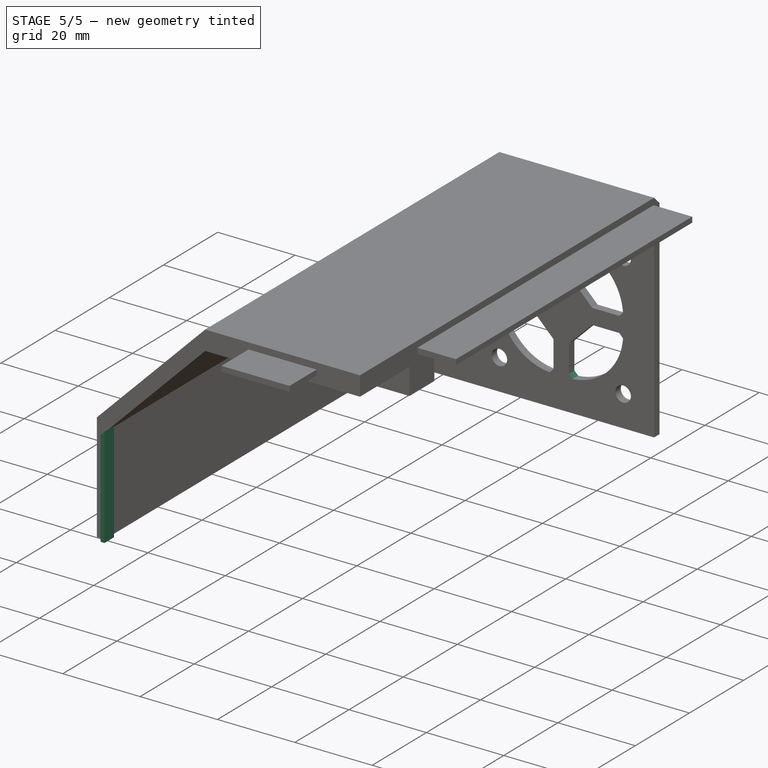
[diagram: stage 5 of 5 — iso view after this stage's code; geometry added in this stage tinted green]
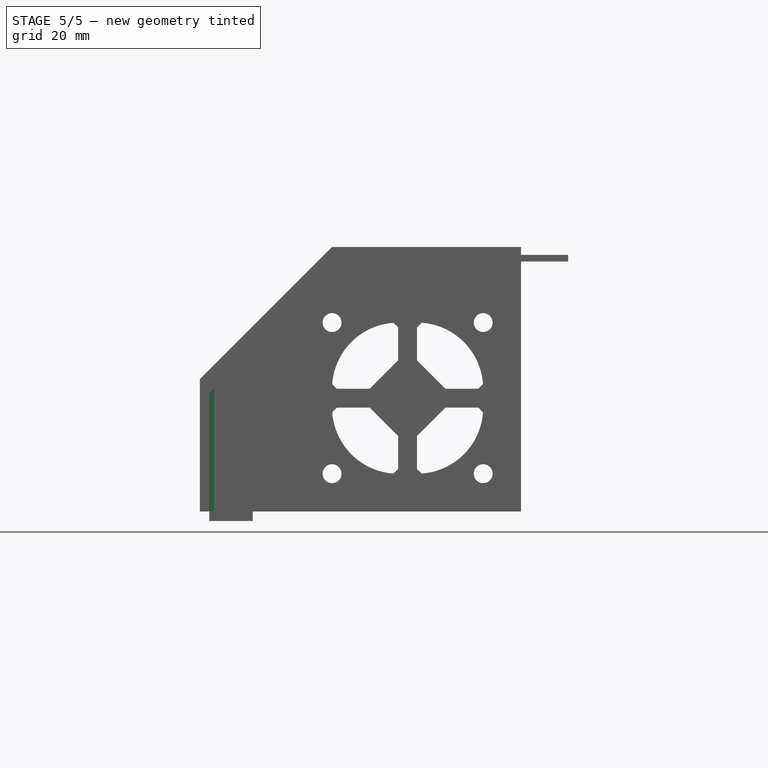
[diagram: stage 5 of 5 — front view after this stage's code; geometry added in this stage tinted green]
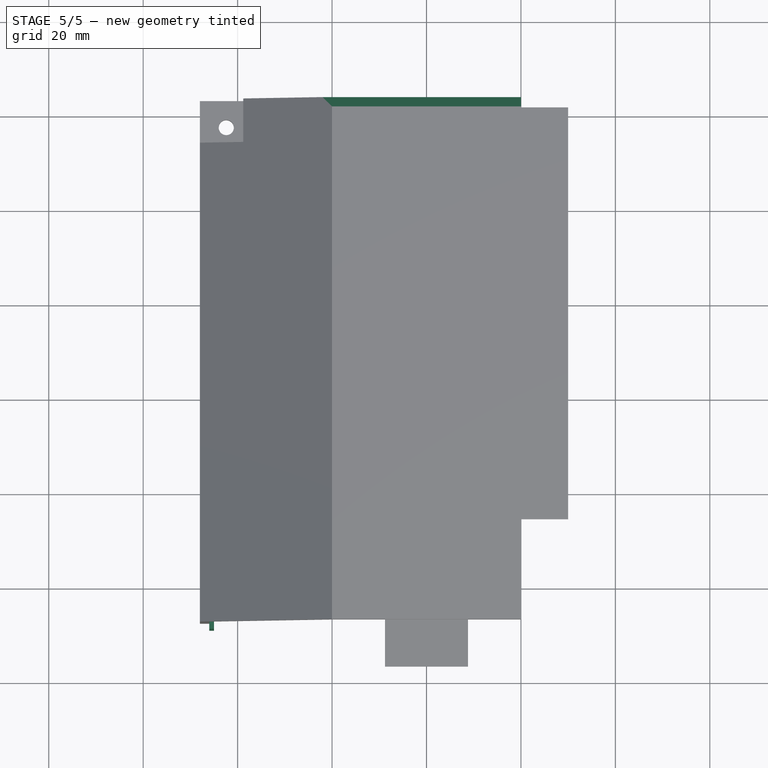
[diagram: stage 5 of 5 — top view after this stage's code; geometry added in this stage tinted green]
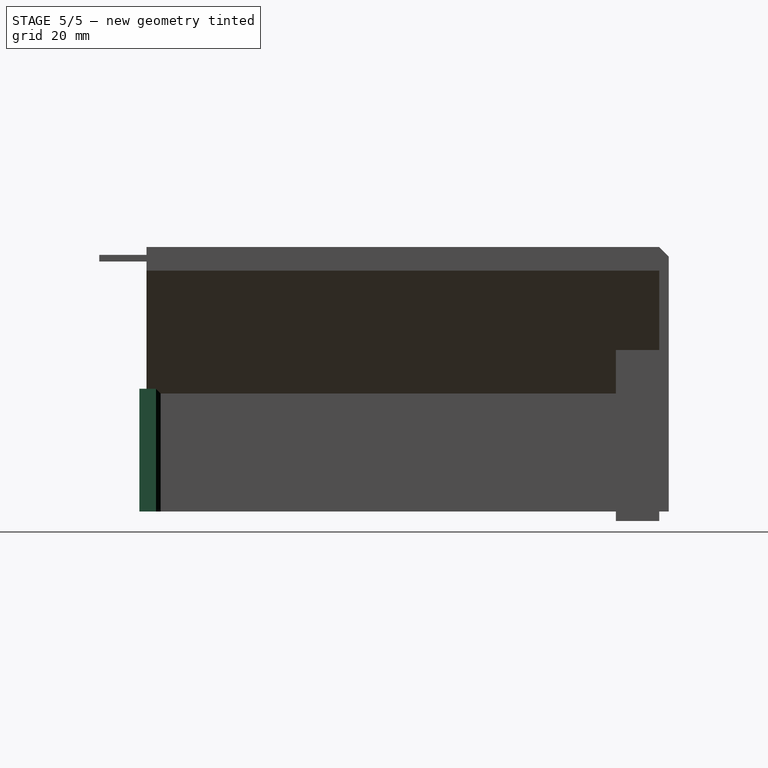
[diagram: stage 5 of 5 — right view after this stage's code; geometry added in this stage tinted green]
FEATURE [PartDesign::Chamfer] Chamfer001
  AddSubType = 0
  Angle = 45
  Base = -> Chamfer [Edge123]
  BaseFeature = -> Chamfer
  ChamferType = 0
  FlipDirection = false
  NewSolid = false
  Size = 2
  Size2 = 1
  SupportTransform = false
  Suppress = false
  TreeRank = 43
FEATURE [Sketcher::SketchObject] Sketch020
  ArcFitTolerance = 0
  AttachmentSupport = -> [Chamfer001]
  ExternalBSplineMaxDegree = 0
  ExternalBSplineTolerance = 0
  ExternalGeometry = -> [Chamfer001]
  FullyConstrained = true
  InternalTolerance = 1e-06
  MakeInternals = false
  MapMode = 5
  Placement = pos=(0,-7.4,1.6e-15) rot=(1,0,0;1.5708rad)
  Support = -> [Chamfer001]
  TreeRank = 44
  sketch-geometry (4):
    g0: LineSegment StartX=-66 StartY=-51 StartZ=0 EndX=-66 EndY=-26 EndZ=0
    g1: LineSegment StartX=-66 StartY=-51 StartZ=0 EndX=-65 EndY=-51 EndZ=0
    g2: LineSegment StartX=-65 StartY=-51 StartZ=0 EndX=-65 EndY=-25 EndZ=0
    g3: LineSegment StartX=-65 StartY=-25 StartZ=0 EndX=-66 EndY=-26 EndZ=0
  constraints (10):
    c: Coincident(g0,g-4)
    c: Coincident(g0,g-3)
    c: Coincident(g1,g0)
    c: Horizontal(g1)
    c: Coincident(g2,g1)
    c: PointOnObject(g2,g-3)
    c: Vertical(g2)
    c: Coincident(g3,g2)
    c: Coincident(g3,g0)
    c: DistanceX(g1,g1) = 1
FEATURE [PartDesign::Pad] Pad017  label="PanelGuard"
  AddSubType = 0
  AlongSketchNormal = false
  AutoTaperInnerAngle = false
  BaseFeature = -> Chamfer001
  CheckUpToFaceLimits = true
  ClaimChildren = false
  Direction = (0,-1,2e-16)
  Fit = 0
  FitJoin = 0
  InnerFit = 0
  InnerFitJoin = 0
  Length = 1.5
  Length2 = 3
  Linearize = true
  NewSolid = false
  Profile = -> Sketch020
  Suppress = false
  TaperInnerAngle = 0
  TaperInnerAngleRev = 0
  TreeRank = 45
  Type = 4
  _ProfileBasedVersion = 1
FEATURE [PartDesign::Chamfer] Chamfer002
  AddSubType = 0
  Angle = 45
  Base = -> Pad017 [Edge167]
  BaseFeature = -> Pad017
  ChamferType = 0
  FlipDirection = false
  NewSolid = false
  Size = 0.99
  Size2 = 1
  SupportTransform = false
  Suppress = false
  TreeRank = 46
FEATURE [PartDesign::Chamfer] Chamfer003
  AddSubType = 0
  Angle = 45
  Base = -> Chamfer002 [Edge159,Edge151,Edge155,Edge139,Edge143,Edge118,Edge122,Edge147]
  BaseFeature = -> Chamfer002
  ChamferType = 0
  FlipDirection = false
  NewSolid = false
  Size = 1
  Size2 = 1
  SupportTransform = false
  Suppress = false
  TreeRank = 47
FEATURE [PartDesign::Body] Body
  AutoGroupSolids = false
  ClaimAllChildren = false
  ExportMode = 0
  Group = -> [LCS_0,Sketch_1,Pad,Sketch,Pad011,Pad001,Sketch001,Pad002,Pocket,Sketch005,Sketch006,Pad006,Sketch011,Sketch013,Pad010,Pad012,Sketch014,Pad013,Sketch015,Pad014,Sketch016,Pad015,Sketch017,Pocket001,Sketch018,Pad016,Sketch019,Pocket002,Chamfer,Chamfer001,Sketch020,Pad017,Chamfer002,Chamfer003]
  Origin = -> Origin001
  Tip = -> Chamfer003
  TreeRank = 0
  _ExportChildren = -> [LCS_0,Pad,Pad011,Pad001,Pad002,Pocket,Pad006,Pad010,Pad012,Pad013,Pad014,Pad015,Pocket001,Pad016,Pocket002,Chamfer,Chamfer001,Pad017,Chamfer002,Chamfer003]
  _GroupVersion = 1
FEATURE [App::Part] Part  label="SecondPartProcessorTop"
  ClaimAllChildren = false
  ExportMode = 1
  Group = -> [Body]
  Origin = -> Origin
  TreeRank = 0
  _ExportChildren = -> [Body]
  _GroupVersion = 1
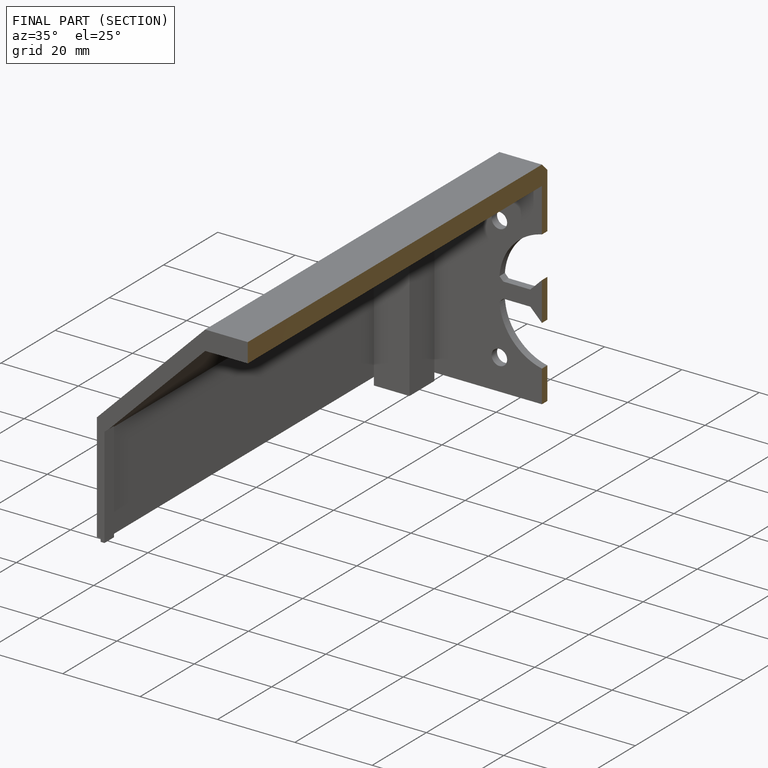
[diagram: finished part — half-section view (interior)]
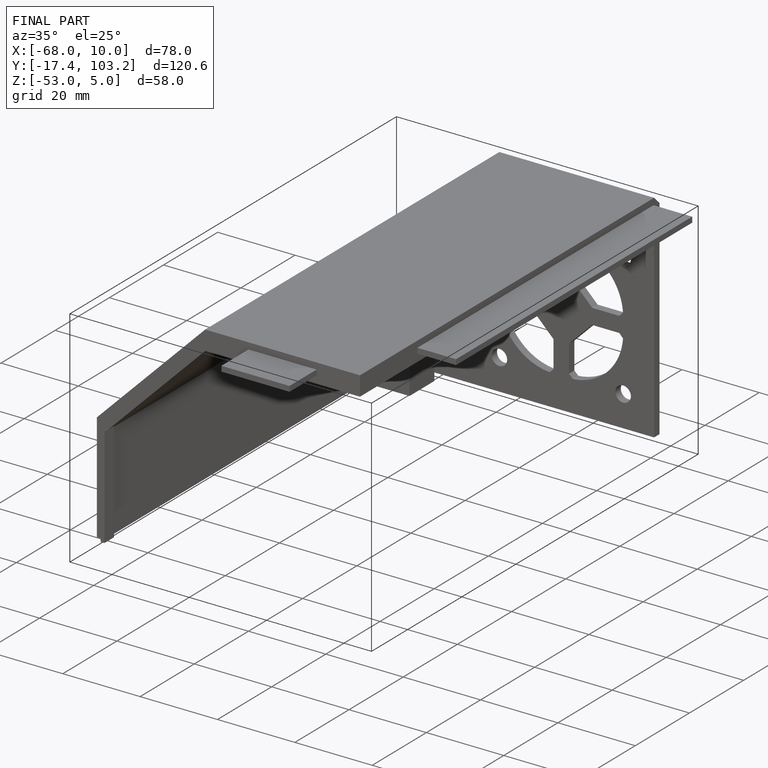
[diagram: finished part — iso view with bounding-box wireframe]
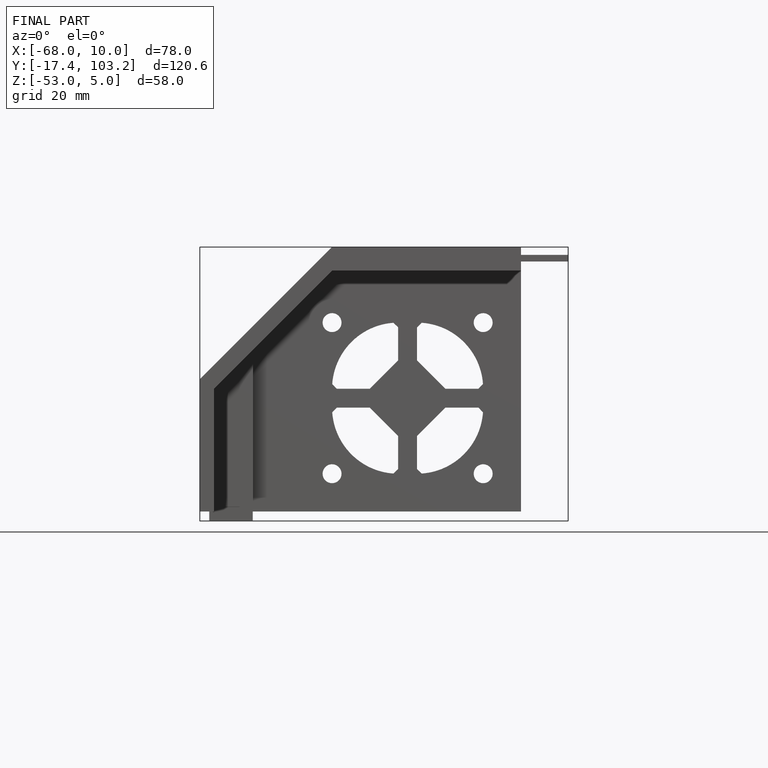
[diagram: finished part — front view with bounding-box wireframe]
